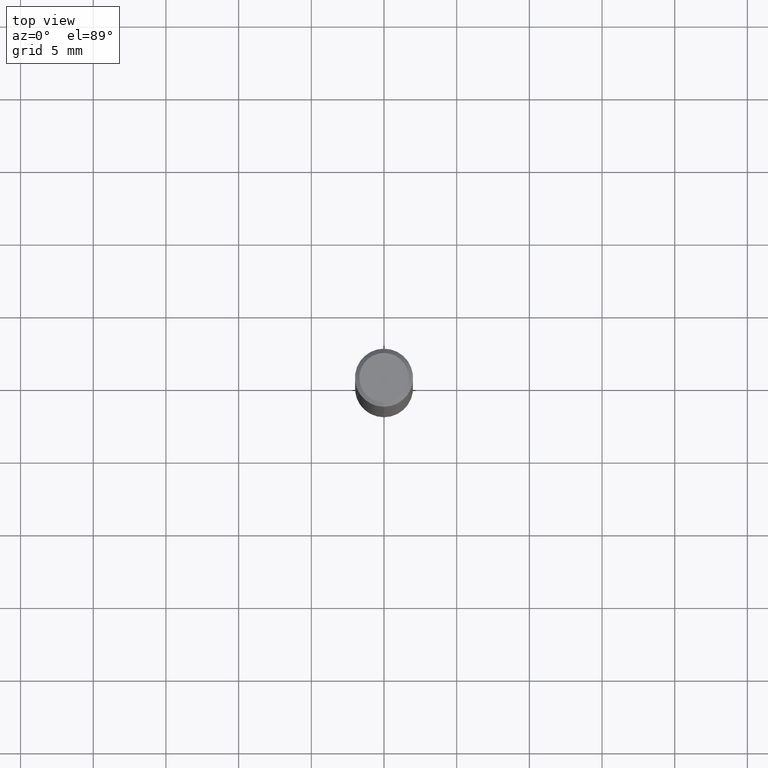
[diagram: clean part render]
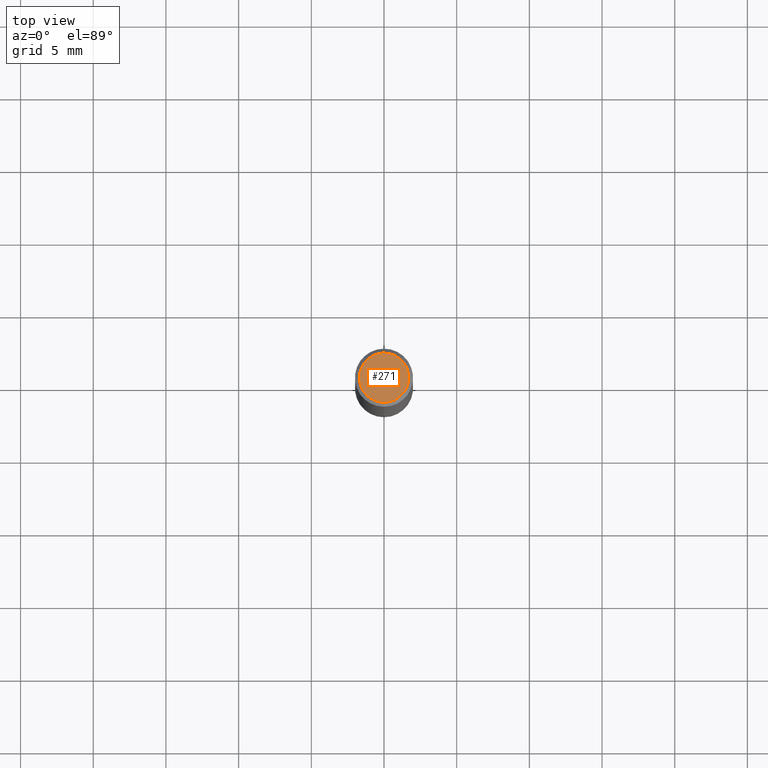
[diagram: same view with one face highlighted and labeled with its STEP entity id]
A machine part, top view. The second image highlights one B-rep face of the part: STEP entity #271.
In plain terms, the highlighted planar face has unit normal (-0, 0, 1).
Its self-contained STEP definition (entity closure, byte-faithful):
#147=VERTEX_POINT('',#384);
#197=EDGE_CURVE('',#253,#147,#439,.T.);
#253=VERTEX_POINT('',#508);
#271=ADVANCED_FACE('',(#527),#528,.T.);
#319=EDGE_CURVE('',#147,#253,#580,.T.);
#384=CARTESIAN_POINT('',(0.0,1.7,0.00999999999999801));
#439=CIRCLE('',#724,1.7);
#508=CARTESIAN_POINT('',(2.08183080149804E-016,-1.7,0.00999999999999801));
#527=FACE_OUTER_BOUND('',#830,.T.);
#528=PLANE('',#831);
#580=CIRCLE('',#898,1.7);
#724=AXIS2_PLACEMENT_3D('',#1029,#1030,#1031);
#830=EDGE_LOOP('',(#1151,#1152));
#831=AXIS2_PLACEMENT_3D('',#1153,#1154,#1155);
#898=AXIS2_PLACEMENT_3D('',#1212,#1213,#1214);
#1029=CARTESIAN_POINT('',(0.0,0.0,0.00999999999999801));
#1030=DIRECTION('',(0.0,0.0,-1.0));
#1031=DIRECTION('',(0.0,1.0,0.0));
#1151=ORIENTED_EDGE('',*,*,#319,.F.);
#1152=ORIENTED_EDGE('',*,*,#197,.F.);
#1153=CARTESIAN_POINT('',(0.0,0.85,0.00999999999999801));
#1154=DIRECTION('',(-0.0,0.0,1.0));
#1155=DIRECTION('',(0.0,-1.0,0.0));
#1212=CARTESIAN_POINT('',(0.0,0.0,0.00999999999999801));
#1213=DIRECTION('',(0.0,0.0,-1.0));
#1214=DIRECTION('',(0.0,1.0,0.0));